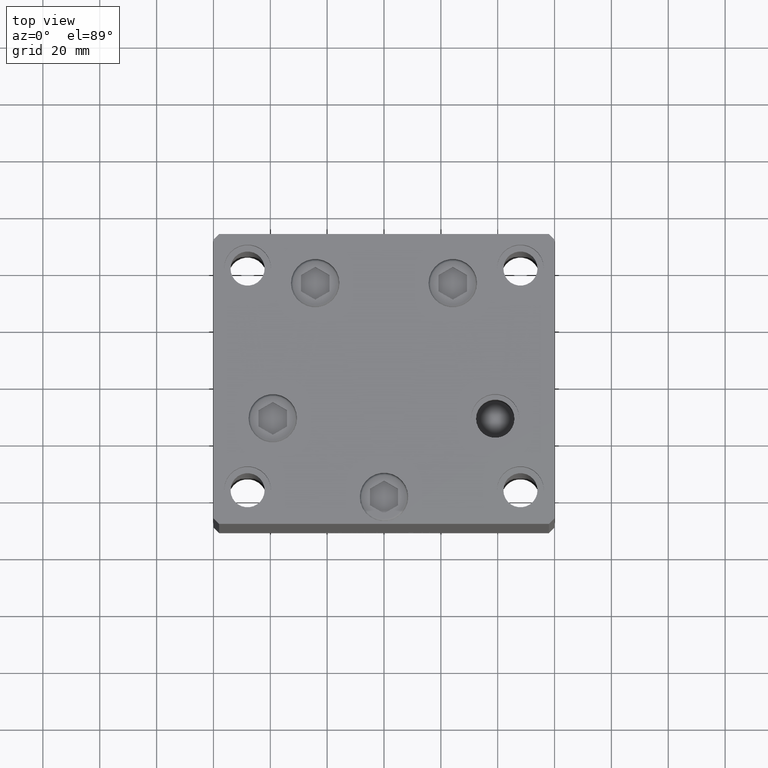
[diagram: clean part render]
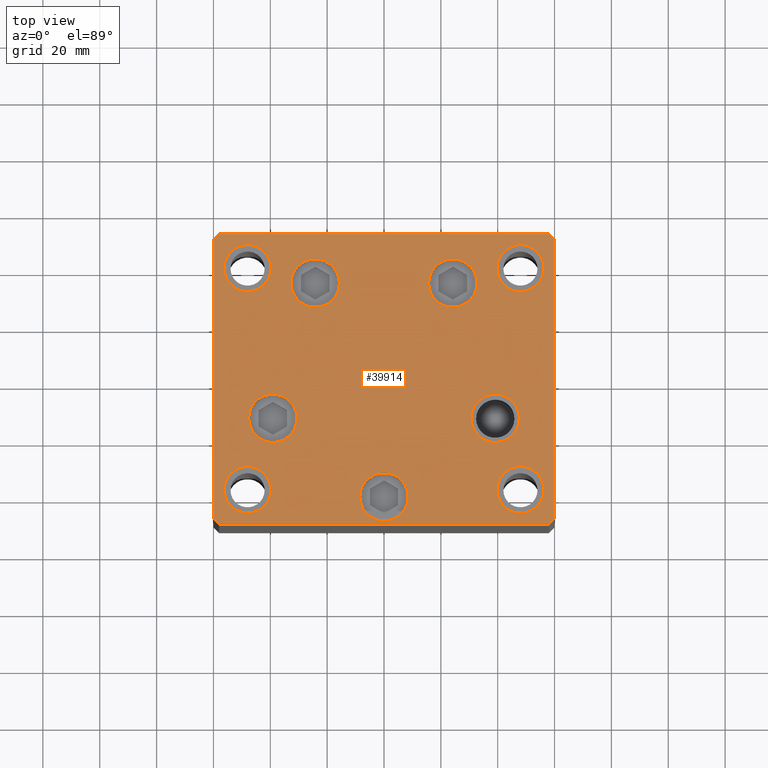
[diagram: same view with one face highlighted and labeled with its STEP entity id]
A machine part, top view. The second image highlights one B-rep face of the part: STEP entity #39914.
In plain terms, the highlighted planar face has unit normal (0, 0, 1).
Its self-contained STEP definition (entity closure, byte-faithful):
#330 = CARTESIAN_POINT ( 'NONE',  ( -60.00000000000000000, -49.00000000000000000, 0.000000000000000000 ) ) ;
#489 = EDGE_CURVE ( 'NONE', #38836, #45565, #8068, .T. ) ;
#740 = EDGE_LOOP ( 'NONE', ( #8081, #29430 ) ) ;
#1092 = CARTESIAN_POINT ( 'NONE',  ( 58.00000000000000000, -51.00000000000000711, 0.000000000000000000 ) ) ;
#1239 = CARTESIAN_POINT ( 'NONE',  ( -39.75000000000000711, 39.00000000000000000, 0.000000000000000000 ) ) ;
#1456 = CARTESIAN_POINT ( 'NONE',  ( 30.62657522565563184, -13.83333333333332860, 0.000000000000000000 ) ) ;
#1739 = VERTEX_POINT ( 'NONE', #330 ) ;
#1955 = LINE ( 'NONE', #29022, #13244 ) ;
#2134 = AXIS2_PLACEMENT_3D ( 'NONE', #33543, #48708, #14672 ) ;
#2840 = ORIENTED_EDGE ( 'NONE', *, *, #47841, .F. ) ;
#2882 = AXIS2_PLACEMENT_3D ( 'NONE', #32958, #11523, #6135 ) ;
#2887 = CARTESIAN_POINT ( 'NONE',  ( 39.12657522565562829, -13.83333333333332860, 0.000000000000000000 ) ) ;
#2929 = DIRECTION ( 'NONE',  ( 0.000000000000000000, -0.000000000000000000, -1.000000000000000000 ) ) ;
#2971 = ORIENTED_EDGE ( 'NONE', *, *, #489, .T. ) ;
#3155 = CARTESIAN_POINT ( 'NONE',  ( 59.99999999999994316, 49.00000000000000000, 0.000000000000000000 ) ) ;
#4347 = CARTESIAN_POINT ( 'NONE',  ( 48.00000000000000000, -38.99999999999999289, 0.000000000000000000 ) ) ;
#4453 = CIRCLE ( 'NONE', #41759, 8.500000000000000000 ) ;
#4518 = LINE ( 'NONE', #46006, #43732 ) ;
#4573 = EDGE_LOOP ( 'NONE', ( #48934, #29675 ) ) ;
#5446 = CARTESIAN_POINT ( 'NONE',  ( 8.500000000000005329, -41.50000000000000000, 0.000000000000000000 ) ) ;
#5460 = CARTESIAN_POINT ( 'NONE',  ( -47.62657522565562829, -13.83333333333333925, 0.000000000000000000 ) ) ;
#5503 = CARTESIAN_POINT ( 'NONE',  ( -39.12657522565562829, -13.83333333333333925, 0.000000000000000000 ) ) ;
#5546 = DIRECTION ( 'NONE',  ( 1.000000000000000000, 0.000000000000000000, 0.000000000000000000 ) ) ;
#5652 = DIRECTION ( 'NONE',  ( 1.000000000000000000, 0.000000000000000000, 0.000000000000000000 ) ) ;
#6107 = DIRECTION ( 'NONE',  ( 1.000000000000000000, 0.000000000000000000, 0.000000000000000000 ) ) ;
#6135 = DIRECTION ( 'NONE',  ( 1.000000000000000000, 0.000000000000000000, 0.000000000000000000 ) ) ;
#6248 = EDGE_CURVE ( 'NONE', #33502, #1739, #1955, .T. ) ;
#6377 = FACE_BOUND ( 'NONE', #4573, .T. ) ;
#6586 = ORIENTED_EDGE ( 'NONE', *, *, #19233, .T. ) ;
#6731 = ORIENTED_EDGE ( 'NONE', *, *, #30639, .F. ) ;
#6881 = EDGE_LOOP ( 'NONE', ( #32765, #37436, #2971, #21781, #10966, #42372, #28920, #36634 ) ) ;
#6960 = LINE ( 'NONE', #40254, #42946 ) ;
#7117 = FACE_BOUND ( 'NONE', #32661, .T. ) ;
#7127 = VERTEX_POINT ( 'NONE', #5460 ) ;
#7314 = CIRCLE ( 'NONE', #41428, 8.500000000000000000 ) ;
#7861 = CARTESIAN_POINT ( 'NONE',  ( 48.00000000000000000, -38.99999999999999289, 0.000000000000000000 ) ) ;
#8068 = LINE ( 'NONE', #1092, #44811 ) ;
#8081 = ORIENTED_EDGE ( 'NONE', *, *, #43715, .F. ) ;
#8479 = DIRECTION ( 'NONE',  ( 1.000000000000000000, 1.196361017915039486E-16, 0.000000000000000000 ) ) ;
#8495 = ORIENTED_EDGE ( 'NONE', *, *, #39173, .T. ) ;
#9355 = CARTESIAN_POINT ( 'NONE',  ( 5.082284216461515748E-15, -41.50000000000000000, 0.000000000000000000 ) ) ;
#9405 = CARTESIAN_POINT ( 'NONE',  ( -30.62657522565562829, -13.83333333333333748, 0.000000000000000000 ) ) ;
#9673 = EDGE_CURVE ( 'NONE', #13718, #30317, #9838, .T. ) ;
#9702 = CIRCLE ( 'NONE', #37469, 8.500000000000000000 ) ;
#9838 = LINE ( 'NONE', #31944, #30683 ) ;
#9910 = EDGE_CURVE ( 'NONE', #24910, #19232, #42598, .T. ) ;
#9935 = EDGE_CURVE ( 'NONE', #1739, #36768, #45486, .T. ) ;
#10007 = DIRECTION ( 'NONE',  ( 1.000000000000000000, 0.000000000000000000, 0.000000000000000000 ) ) ;
#10463 = VERTEX_POINT ( 'NONE', #14371 ) ;
#10542 = CARTESIAN_POINT ( 'NONE',  ( -8.499999999999994671, -41.50000000000000000, 0.000000000000000000 ) ) ;
#10606 = FACE_BOUND ( 'NONE', #18138, .T. ) ;
#10966 = ORIENTED_EDGE ( 'NONE', *, *, #38694, .T. ) ;
#11293 = VERTEX_POINT ( 'NONE', #1239 ) ;
#11347 = ORIENTED_EDGE ( 'NONE', *, *, #45751, .T. ) ;
#11523 = DIRECTION ( 'NONE',  ( 0.000000000000000000, -0.000000000000000000, -1.000000000000000000 ) ) ;
#11983 = EDGE_CURVE ( 'NONE', #21783, #44403, #24403, .T. ) ;
#12065 = ORIENTED_EDGE ( 'NONE', *, *, #20732, .T. ) ;
#12139 = ORIENTED_EDGE ( 'NONE', *, *, #29035, .F. ) ;
#12479 = CARTESIAN_POINT ( 'NONE',  ( -15.69288941894911993, 33.71875000000000000, 0.000000000000000000 ) ) ;
#12883 = CARTESIAN_POINT ( 'NONE',  ( -48.00000000000000000, 39.00000000000000000, 0.000000000000000000 ) ) ;
#12945 = DIRECTION ( 'NONE',  ( 0.000000000000000000, 0.000000000000000000, 1.000000000000000000 ) ) ;
#13012 = DIRECTION ( 'NONE',  ( 0.7071067811865474617, 0.7071067811865474617, 0.000000000000000000 ) ) ;
#13038 = EDGE_LOOP ( 'NONE', ( #19903, #2840 ) ) ;
#13113 = ORIENTED_EDGE ( 'NONE', *, *, #45931, .T. ) ;
#13244 = VECTOR ( 'NONE', #32748, 1000.000000000000000 ) ;
#13432 = DIRECTION ( 'NONE',  ( 1.000000000000000000, 0.000000000000000000, 0.000000000000000000 ) ) ;
#13624 = CIRCLE ( 'NONE', #27918, 8.500000000000000000 ) ;
#13682 = VECTOR ( 'NONE', #25246, 1000.000000000000000 ) ;
#13718 = VERTEX_POINT ( 'NONE', #24941 ) ;
#13833 = CARTESIAN_POINT ( 'NONE',  ( 60.00000000000001421, -48.99999999999999289, 0.000000000000000000 ) ) ;
#13838 = CARTESIAN_POINT ( 'NONE',  ( 0.000000000000000000, 0.000000000000000000, 0.000000000000000000 ) ) ;
#14365 = CIRCLE ( 'NONE', #16741, 8.499999999999992895 ) ;
#14371 = CARTESIAN_POINT ( 'NONE',  ( -32.69288941894912170, 33.71875000000000000, 0.000000000000000000 ) ) ;
#14672 = DIRECTION ( 'NONE',  ( 1.000000000000000000, 0.000000000000000000, 0.000000000000000000 ) ) ;
#15037 = CARTESIAN_POINT ( 'NONE',  ( -39.75000000000000711, -39.00000000000000000, 0.000000000000000000 ) ) ;
#15812 = ORIENTED_EDGE ( 'NONE', *, *, #24142, .F. ) ;
#16148 = VECTOR ( 'NONE', #21635, 1000.000000000000000 ) ;
#16229 = CARTESIAN_POINT ( 'NONE',  ( -48.00000000000000000, -39.00000000000000000, 0.000000000000000000 ) ) ;
#16434 = ORIENTED_EDGE ( 'NONE', *, *, #25258, .T. ) ;
#16599 = VERTEX_POINT ( 'NONE', #12479 ) ;
#16741 = AXIS2_PLACEMENT_3D ( 'NONE', #37073, #44289, #10007 ) ;
#17314 = FACE_BOUND ( 'NONE', #38007, .T. ) ;
#17385 = DIRECTION ( 'NONE',  ( 0.000000000000000000, -0.000000000000000000, -1.000000000000000000 ) ) ;
#17442 = CARTESIAN_POINT ( 'NONE',  ( -56.24999999999999289, -39.00000000000000000, 0.000000000000000000 ) ) ;
#17558 = PLANE ( 'NONE',  #39980 ) ;
#17572 = EDGE_CURVE ( 'NONE', #34541, #28983, #19824, .T. ) ;
#17850 = CIRCLE ( 'NONE', #37709, 8.249999999999992895 ) ;
#17939 = CARTESIAN_POINT ( 'NONE',  ( 32.69288941894911460, 33.71875000000000711, 0.000000000000000000 ) ) ;
#17984 = VECTOR ( 'NONE', #33297, 1000.000000000000114 ) ;
#17986 = CIRCLE ( 'NONE', #26722, 8.500000000000000000 ) ;
#18041 = DIRECTION ( 'NONE',  ( 0.000000000000000000, -0.000000000000000000, -1.000000000000000000 ) ) ;
#18137 = DIRECTION ( 'NONE',  ( -0.7071067811865451302, -0.7071067811865500152, 0.000000000000000000 ) ) ;
#18138 = EDGE_LOOP ( 'NONE', ( #12065, #11347 ) ) ;
#18154 = CARTESIAN_POINT ( 'NONE',  ( -60.00000000000000000, -49.00000000000000000, 0.000000000000000000 ) ) ;
#19182 = AXIS2_PLACEMENT_3D ( 'NONE', #4347, #46323, #30911 ) ;
#19232 = VERTEX_POINT ( 'NONE', #17939 ) ;
#19233 = EDGE_CURVE ( 'NONE', #31977, #37215, #14365, .T. ) ;
#19537 = EDGE_LOOP ( 'NONE', ( #8495, #6586 ) ) ;
#19824 = CIRCLE ( 'NONE', #43624, 8.249999999999992895 ) ;
#19903 = ORIENTED_EDGE ( 'NONE', *, *, #44294, .F. ) ;
#19929 = CIRCLE ( 'NONE', #33398, 8.249999999999992895 ) ;
#20380 = CARTESIAN_POINT ( 'NONE',  ( 5.082284216461515748E-15, -41.50000000000000000, 0.000000000000000000 ) ) ;
#20524 = CARTESIAN_POINT ( 'NONE',  ( 48.00000000000000000, 38.99999999999999289, 0.000000000000000000 ) ) ;
#20554 = VERTEX_POINT ( 'NONE', #5446 ) ;
#20586 = DIRECTION ( 'NONE',  ( 0.000000000000000000, 0.000000000000000000, 1.000000000000000000 ) ) ;
#20732 = EDGE_CURVE ( 'NONE', #10463, #16599, #36611, .T. ) ;
#20991 = VERTEX_POINT ( 'NONE', #15037 ) ;
#21524 = FACE_BOUND ( 'NONE', #740, .T. ) ;
#21635 = DIRECTION ( 'NONE',  ( -0.7071067811865487940, 0.7071067811865463515, 0.000000000000000000 ) ) ;
#21781 = ORIENTED_EDGE ( 'NONE', *, *, #32609, .T. ) ;
#21783 = VERTEX_POINT ( 'NONE', #35974 ) ;
#22921 = EDGE_CURVE ( 'NONE', #20554, #42035, #7314, .T. ) ;
#23000 = DIRECTION ( 'NONE',  ( 1.000000000000000000, 0.000000000000000000, 0.000000000000000000 ) ) ;
#23219 = CARTESIAN_POINT ( 'NONE',  ( 60.00000000000001421, -48.99999999999999289, 0.000000000000000000 ) ) ;
#23672 = DIRECTION ( 'NONE',  ( 0.000000000000000000, 0.000000000000000000, 1.000000000000000000 ) ) ;
#23966 = EDGE_CURVE ( 'NONE', #36768, #38836, #4518, .T. ) ;
#24046 = CIRCLE ( 'NONE', #39126, 8.499999999999992895 ) ;
#24142 = EDGE_CURVE ( 'NONE', #20991, #46182, #19929, .T. ) ;
#24252 = EDGE_CURVE ( 'NONE', #30317, #33502, #6960, .T. ) ;
#24365 = CIRCLE ( 'NONE', #29120, 8.249999999999992895 ) ;
#24403 = CIRCLE ( 'NONE', #36332, 8.249999999999992895 ) ;
#24491 = DIRECTION ( 'NONE',  ( 0.000000000000000000, -0.000000000000000000, -1.000000000000000000 ) ) ;
#24727 = DIRECTION ( 'NONE',  ( 1.000000000000000000, 0.000000000000000000, 0.000000000000000000 ) ) ;
#24910 = VERTEX_POINT ( 'NONE', #36163 ) ;
#24941 = CARTESIAN_POINT ( 'NONE',  ( 57.99999999999993605, 51.00000000000000711, 0.000000000000000000 ) ) ;
#25246 = DIRECTION ( 'NONE',  ( -7.080503983578803823E-16, 1.000000000000000000, 0.000000000000000000 ) ) ;
#25251 = FACE_OUTER_BOUND ( 'NONE', #6881, .T. ) ;
#25258 = EDGE_CURVE ( 'NONE', #7127, #49049, #13624, .T. ) ;
#25289 = CARTESIAN_POINT ( 'NONE',  ( -24.19288941894912170, 33.71875000000000000, 0.000000000000000000 ) ) ;
#25744 = FACE_BOUND ( 'NONE', #13038, .T. ) ;
#25857 = CIRCLE ( 'NONE', #2882, 8.500000000000000000 ) ;
#25995 = FACE_BOUND ( 'NONE', #19537, .T. ) ;
#26722 = AXIS2_PLACEMENT_3D ( 'NONE', #20380, #17385, #43977 ) ;
#27219 = DIRECTION ( 'NONE',  ( 0.000000000000000000, 0.000000000000000000, 1.000000000000000000 ) ) ;
#27860 = CARTESIAN_POINT ( 'NONE',  ( -48.00000000000000000, -39.00000000000000000, 0.000000000000000000 ) ) ;
#27915 = ORIENTED_EDGE ( 'NONE', *, *, #11983, .F. ) ;
#27918 = AXIS2_PLACEMENT_3D ( 'NONE', #5503, #46999, #31586 ) ;
#28493 = DIRECTION ( 'NONE',  ( 1.000000000000000000, 0.000000000000000000, 0.000000000000000000 ) ) ;
#28526 = DIRECTION ( 'NONE',  ( 1.000000000000000000, 0.000000000000000000, 0.000000000000000000 ) ) ;
#28920 = ORIENTED_EDGE ( 'NONE', *, *, #24252, .T. ) ;
#28983 = VERTEX_POINT ( 'NONE', #41346 ) ;
#28996 = DIRECTION ( 'NONE',  ( 1.000000000000000000, 0.000000000000000000, 0.000000000000000000 ) ) ;
#29022 = CARTESIAN_POINT ( 'NONE',  ( -60.00000000000000000, 48.99999999999995737, 0.000000000000000000 ) ) ;
#29035 = EDGE_CURVE ( 'NONE', #46182, #20991, #41338, .T. ) ;
#29120 = AXIS2_PLACEMENT_3D ( 'NONE', #37440, #32727, #28996 ) ;
#29430 = ORIENTED_EDGE ( 'NONE', *, *, #17572, .F. ) ;
#29675 = ORIENTED_EDGE ( 'NONE', *, *, #22921, .T. ) ;
#29953 = CARTESIAN_POINT ( 'NONE',  ( 39.75000000000000711, 38.99999999999999289, 0.000000000000000000 ) ) ;
#30317 = VERTEX_POINT ( 'NONE', #43263 ) ;
#30639 = EDGE_CURVE ( 'NONE', #44403, #21783, #38219, .T. ) ;
#30683 = VECTOR ( 'NONE', #43626, 1000.000000000000000 ) ;
#30911 = DIRECTION ( 'NONE',  ( 1.000000000000000000, 0.000000000000000000, 0.000000000000000000 ) ) ;
#31586 = DIRECTION ( 'NONE',  ( 1.000000000000000000, 0.000000000000000000, 0.000000000000000000 ) ) ;
#31621 = CARTESIAN_POINT ( 'NONE',  ( -57.99999999999997868, -51.00000000000001421, 0.000000000000000000 ) ) ;
#31933 = DIRECTION ( 'NONE',  ( 0.000000000000000000, 0.000000000000000000, 1.000000000000000000 ) ) ;
#31944 = CARTESIAN_POINT ( 'NONE',  ( 57.99999999999993605, 51.00000000000000711, 0.000000000000000000 ) ) ;
#31977 = VERTEX_POINT ( 'NONE', #48973 ) ;
#32338 = CARTESIAN_POINT ( 'NONE',  ( 48.00000000000000000, 38.99999999999999289, 0.000000000000000000 ) ) ;
#32609 = EDGE_CURVE ( 'NONE', #45565, #37420, #40152, .T. ) ;
#32661 = EDGE_LOOP ( 'NONE', ( #27915, #6731 ) ) ;
#32704 = FACE_BOUND ( 'NONE', #48546, .T. ) ;
#32727 = DIRECTION ( 'NONE',  ( 0.000000000000000000, 0.000000000000000000, 1.000000000000000000 ) ) ;
#32748 = DIRECTION ( 'NONE',  ( 0.000000000000000000, -1.000000000000000000, 0.000000000000000000 ) ) ;
#32765 = ORIENTED_EDGE ( 'NONE', *, *, #9935, .T. ) ;
#32944 = DIRECTION ( 'NONE',  ( 1.000000000000000000, 0.000000000000000000, 0.000000000000000000 ) ) ;
#32952 = FACE_BOUND ( 'NONE', #41241, .T. ) ;
#32958 = CARTESIAN_POINT ( 'NONE',  ( -39.12657522565562829, -13.83333333333333925, 0.000000000000000000 ) ) ;
#33297 = DIRECTION ( 'NONE',  ( 0.7071067811865474617, -0.7071067811865474617, 0.000000000000000000 ) ) ;
#33398 = AXIS2_PLACEMENT_3D ( 'NONE', #27860, #12945, #13432 ) ;
#33502 = VERTEX_POINT ( 'NONE', #39830 ) ;
#33543 = CARTESIAN_POINT ( 'NONE',  ( 24.19288941894911460, 33.71875000000000711, 0.000000000000000000 ) ) ;
#33767 = AXIS2_PLACEMENT_3D ( 'NONE', #12883, #20586, #43194 ) ;
#34178 = AXIS2_PLACEMENT_3D ( 'NONE', #16229, #23672, #5546 ) ;
#34541 = VERTEX_POINT ( 'NONE', #29953 ) ;
#35370 = CIRCLE ( 'NONE', #33767, 8.249999999999992895 ) ;
#35463 = CARTESIAN_POINT ( 'NONE',  ( -24.19288941894912170, 33.71875000000000000, 0.000000000000000000 ) ) ;
#35639 = EDGE_CURVE ( 'NONE', #19232, #24910, #9702, .T. ) ;
#35974 = CARTESIAN_POINT ( 'NONE',  ( 56.24999999999999289, -38.99999999999999289, 0.000000000000000000 ) ) ;
#36163 = CARTESIAN_POINT ( 'NONE',  ( 15.69288941894910927, 33.71875000000000711, 0.000000000000000000 ) ) ;
#36332 = AXIS2_PLACEMENT_3D ( 'NONE', #7861, #27219, #23000 ) ;
#36611 = CIRCLE ( 'NONE', #44555, 8.500000000000000000 ) ;
#36634 = ORIENTED_EDGE ( 'NONE', *, *, #6248, .T. ) ;
#36768 = VERTEX_POINT ( 'NONE', #31621 ) ;
#37060 = CARTESIAN_POINT ( 'NONE',  ( -56.24999999999999289, 39.00000000000000000, 0.000000000000000000 ) ) ;
#37073 = CARTESIAN_POINT ( 'NONE',  ( 39.12657522565562829, -13.83333333333332860, 0.000000000000000000 ) ) ;
#37206 = CARTESIAN_POINT ( 'NONE',  ( 39.75000000000000711, -38.99999999999999289, 0.000000000000000000 ) ) ;
#37215 = VERTEX_POINT ( 'NONE', #1456 ) ;
#37420 = VERTEX_POINT ( 'NONE', #3155 ) ;
#37436 = ORIENTED_EDGE ( 'NONE', *, *, #23966, .T. ) ;
#37440 = CARTESIAN_POINT ( 'NONE',  ( -48.00000000000000000, 39.00000000000000000, 0.000000000000000000 ) ) ;
#37469 = AXIS2_PLACEMENT_3D ( 'NONE', #43909, #48116, #5652 ) ;
#37709 = AXIS2_PLACEMENT_3D ( 'NONE', #20524, #31933, #24727 ) ;
#38007 = EDGE_LOOP ( 'NONE', ( #48413, #45580 ) ) ;
#38219 = CIRCLE ( 'NONE', #19182, 8.249999999999992895 ) ;
#38694 = EDGE_CURVE ( 'NONE', #37420, #13718, #44017, .T. ) ;
#38836 = VERTEX_POINT ( 'NONE', #40453 ) ;
#39126 = AXIS2_PLACEMENT_3D ( 'NONE', #2887, #18041, #32944 ) ;
#39173 = EDGE_CURVE ( 'NONE', #37215, #31977, #24046, .T. ) ;
#39830 = CARTESIAN_POINT ( 'NONE',  ( -60.00000000000000000, 48.99999999999995737, 0.000000000000000000 ) ) ;
#39914 = ADVANCED_FACE ( 'NONE', ( #10606, #17314, #25995, #6377, #32952, #7117, #32704, #25744, #21524, #25251 ), #17558, .T. ) ;
#39980 = AXIS2_PLACEMENT_3D ( 'NONE', #13838, #47620, #40897 ) ;
#40152 = LINE ( 'NONE', #13833, #13682 ) ;
#40254 = CARTESIAN_POINT ( 'NONE',  ( -57.99999999999999289, 50.99999999999997868, 0.000000000000000000 ) ) ;
#40425 = VERTEX_POINT ( 'NONE', #37060 ) ;
#40453 = CARTESIAN_POINT ( 'NONE',  ( 58.00000000000000000, -51.00000000000000711, 0.000000000000000000 ) ) ;
#40897 = DIRECTION ( 'NONE',  ( 1.000000000000000000, 0.000000000000000000, 0.000000000000000000 ) ) ;
#41010 = CARTESIAN_POINT ( 'NONE',  ( 59.99999999999994316, 49.00000000000000000, 0.000000000000000000 ) ) ;
#41241 = EDGE_LOOP ( 'NONE', ( #16434, #13113 ) ) ;
#41338 = CIRCLE ( 'NONE', #34178, 8.249999999999992895 ) ;
#41346 = CARTESIAN_POINT ( 'NONE',  ( 56.24999999999999289, 38.99999999999999289, 0.000000000000000000 ) ) ;
#41428 = AXIS2_PLACEMENT_3D ( 'NONE', #9355, #24491, #6107 ) ;
#41759 = AXIS2_PLACEMENT_3D ( 'NONE', #35463, #43408, #28493 ) ;
#42035 = VERTEX_POINT ( 'NONE', #10542 ) ;
#42372 = ORIENTED_EDGE ( 'NONE', *, *, #9673, .T. ) ;
#42598 = CIRCLE ( 'NONE', #2134, 8.500000000000000000 ) ;
#42946 = VECTOR ( 'NONE', #18137, 1000.000000000000114 ) ;
#43194 = DIRECTION ( 'NONE',  ( 1.000000000000000000, 0.000000000000000000, 0.000000000000000000 ) ) ;
#43263 = CARTESIAN_POINT ( 'NONE',  ( -57.99999999999999289, 50.99999999999997868, 0.000000000000000000 ) ) ;
#43408 = DIRECTION ( 'NONE',  ( 0.000000000000000000, -0.000000000000000000, -1.000000000000000000 ) ) ;
#43624 = AXIS2_PLACEMENT_3D ( 'NONE', #32338, #43771, #47499 ) ;
#43626 = DIRECTION ( 'NONE',  ( -1.000000000000000000, -2.392722035830079958E-16, 0.000000000000000000 ) ) ;
#43715 = EDGE_CURVE ( 'NONE', #28983, #34541, #17850, .T. ) ;
#43732 = VECTOR ( 'NONE', #8479, 1000.000000000000000 ) ;
#43771 = DIRECTION ( 'NONE',  ( 0.000000000000000000, 0.000000000000000000, 1.000000000000000000 ) ) ;
#43909 = CARTESIAN_POINT ( 'NONE',  ( 24.19288941894911460, 33.71875000000000711, 0.000000000000000000 ) ) ;
#43977 = DIRECTION ( 'NONE',  ( 1.000000000000000000, 0.000000000000000000, 0.000000000000000000 ) ) ;
#44017 = LINE ( 'NONE', #41010, #16148 ) ;
#44289 = DIRECTION ( 'NONE',  ( 0.000000000000000000, -0.000000000000000000, -1.000000000000000000 ) ) ;
#44294 = EDGE_CURVE ( 'NONE', #11293, #40425, #35370, .T. ) ;
#44403 = VERTEX_POINT ( 'NONE', #37206 ) ;
#44555 = AXIS2_PLACEMENT_3D ( 'NONE', #25289, #2929, #28526 ) ;
#44811 = VECTOR ( 'NONE', #13012, 1000.000000000000114 ) ;
#45486 = LINE ( 'NONE', #18154, #17984 ) ;
#45565 = VERTEX_POINT ( 'NONE', #23219 ) ;
#45580 = ORIENTED_EDGE ( 'NONE', *, *, #35639, .T. ) ;
#45751 = EDGE_CURVE ( 'NONE', #16599, #10463, #4453, .T. ) ;
#45931 = EDGE_CURVE ( 'NONE', #49049, #7127, #25857, .T. ) ;
#46006 = CARTESIAN_POINT ( 'NONE',  ( -57.99999999999997868, -51.00000000000001421, 0.000000000000000000 ) ) ;
#46182 = VERTEX_POINT ( 'NONE', #17442 ) ;
#46323 = DIRECTION ( 'NONE',  ( 0.000000000000000000, 0.000000000000000000, 1.000000000000000000 ) ) ;
#46548 = EDGE_CURVE ( 'NONE', #42035, #20554, #17986, .T. ) ;
#46999 = DIRECTION ( 'NONE',  ( 0.000000000000000000, -0.000000000000000000, -1.000000000000000000 ) ) ;
#47499 = DIRECTION ( 'NONE',  ( 1.000000000000000000, 0.000000000000000000, 0.000000000000000000 ) ) ;
#47620 = DIRECTION ( 'NONE',  ( -0.000000000000000000, 0.000000000000000000, 1.000000000000000000 ) ) ;
#47841 = EDGE_CURVE ( 'NONE', #40425, #11293, #24365, .T. ) ;
#48116 = DIRECTION ( 'NONE',  ( 0.000000000000000000, -0.000000000000000000, -1.000000000000000000 ) ) ;
#48413 = ORIENTED_EDGE ( 'NONE', *, *, #9910, .T. ) ;
#48546 = EDGE_LOOP ( 'NONE', ( #15812, #12139 ) ) ;
#48708 = DIRECTION ( 'NONE',  ( 0.000000000000000000, -0.000000000000000000, -1.000000000000000000 ) ) ;
#48934 = ORIENTED_EDGE ( 'NONE', *, *, #46548, .T. ) ;
#48973 = CARTESIAN_POINT ( 'NONE',  ( 47.62657522565562118, -13.83333333333332682, 0.000000000000000000 ) ) ;
#49049 = VERTEX_POINT ( 'NONE', #9405 ) ;